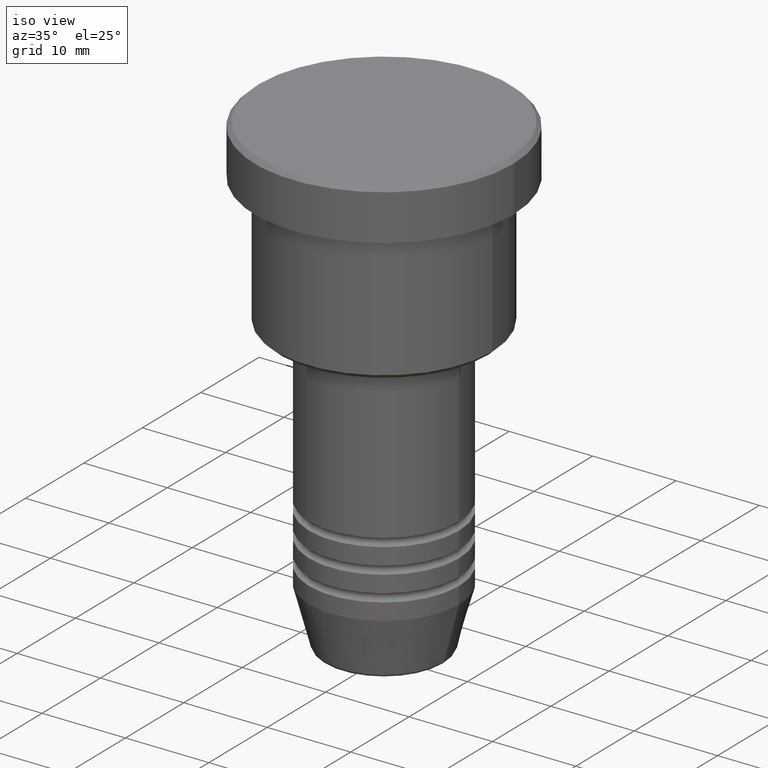
[diagram: clean part render]
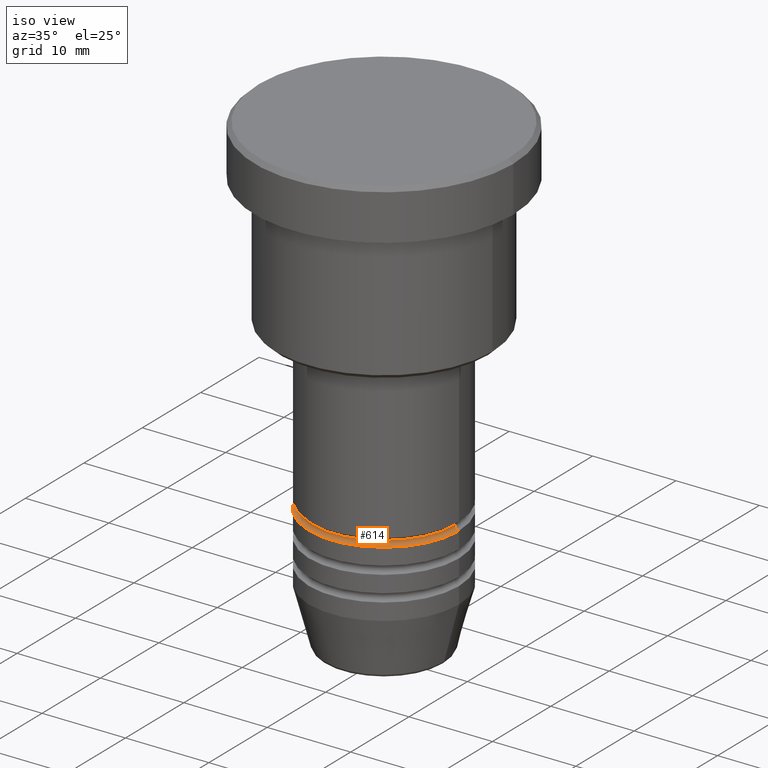
[diagram: same view with one face highlighted and labeled with its STEP entity id]
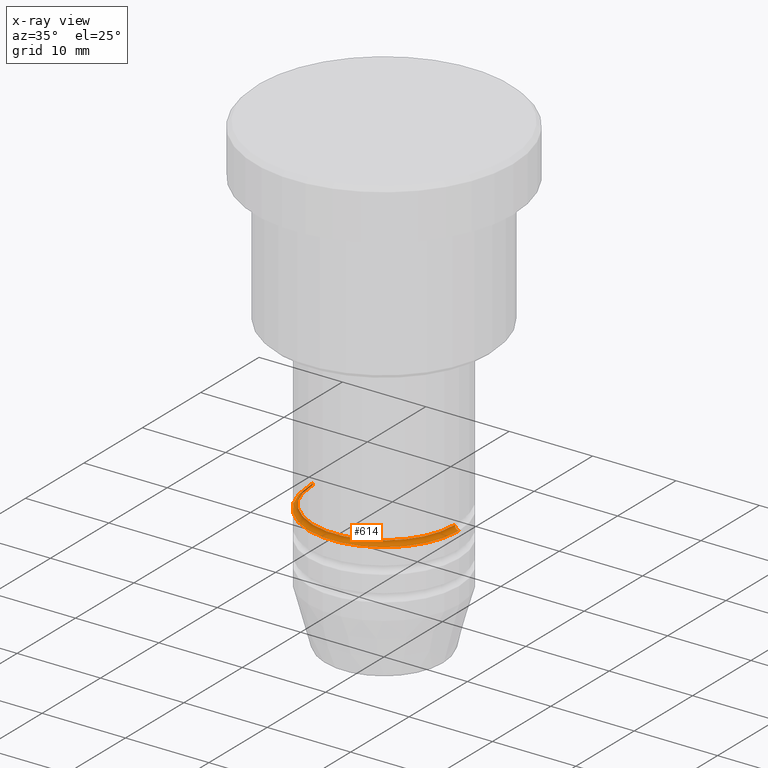
[diagram: x-ray of the same camera — body ghosted, the highlighted face saturated]
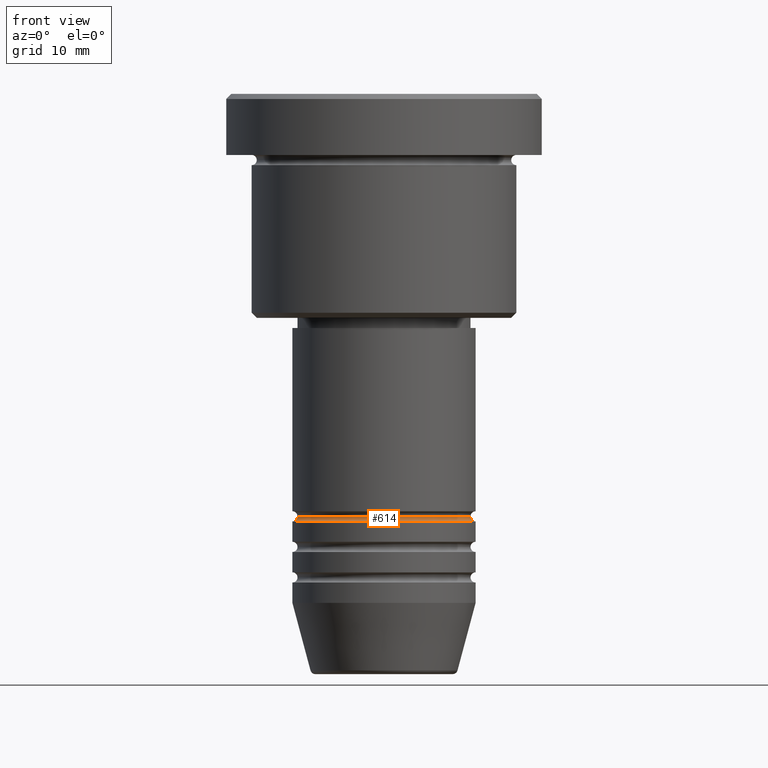
[diagram: same view with one face highlighted and labeled with its STEP entity id]
A machine part, iso view. The second image highlights one B-rep face of the part: STEP entity #614.
The next image is the same camera in x-ray: the body ghosted, the highlighted face saturated — about 2% of this face is hidden behind the body in this view.
A second angle (front view) of the same face is appended — the face is thin or edge-on in the first view.
In plain terms, the highlighted toroidal blend (fillet) surface has major radius 9 mm and minor (blend) radius 0.5 mm.
Its self-contained STEP definition (entity closure, byte-faithful):
#47 = VERTEX_POINT ( 'NONE', #762 ) ;
#135 = DIRECTION ( 'NONE',  ( -0.000000000000000000, -0.000000000000000000, 1.000000000000000000 ) ) ;
#140 = FACE_OUTER_BOUND ( 'NONE', #1010, .T. ) ;
#144 = DIRECTION ( 'NONE',  ( 0.000000000000000000, 0.000000000000000000, -1.000000000000000000 ) ) ;
#148 = DIRECTION ( 'NONE',  ( 0.000000000000000000, -1.000000000000000000, 0.000000000000000000 ) ) ;
#185 = EDGE_CURVE ( 'NONE', #47, #200, #538, .T. ) ;
#200 = VERTEX_POINT ( 'NONE', #766 ) ;
#260 = DIRECTION ( 'NONE',  ( -1.000000000000000000, 1.224646799147353454E-16, 0.000000000000000000 ) ) ;
#262 = ORIENTED_EDGE ( 'NONE', *, *, #646, .T. ) ;
#346 = CARTESIAN_POINT ( 'NONE',  ( -9.000000000000001776, 1.102182119232617911E-15, -41.49999999999997868 ) ) ;
#372 = VERTEX_POINT ( 'NONE', #983 ) ;
#406 = DIRECTION ( 'NONE',  ( 1.000000000000000000, 0.000000000000000000, 0.000000000000000000 ) ) ;
#496 = CIRCLE ( 'NONE', #1054, 8.500000000000000000 ) ;
#519 = CIRCLE ( 'NONE', #789, 9.000000000000000000 ) ;
#534 = AXIS2_PLACEMENT_3D ( 'NONE', #346, #1080, #260 ) ;
#538 = CIRCLE ( 'NONE', #868, 0.5000000000000004441 ) ;
#592 = CARTESIAN_POINT ( 'NONE',  ( 0.000000000000000000, 0.000000000000000000, -41.49999999999997868 ) ) ;
#614 = ADVANCED_FACE ( 'NONE', ( #140 ), #673, .F. ) ;
#646 = EDGE_CURVE ( 'NONE', #822, #200, #519, .T. ) ;
#673 = TOROIDAL_SURFACE ( 'NONE', #979, 9.000000000000001776, 0.5000000000000000000 ) ;
#678 = DIRECTION ( 'NONE',  ( 1.000000000000000000, 0.000000000000000000, 0.000000000000000000 ) ) ;
#680 = CARTESIAN_POINT ( 'NONE',  ( 9.000000000000001776, 0.000000000000000000, -41.49999999999997868 ) ) ;
#698 = CARTESIAN_POINT ( 'NONE',  ( -9.000000000000000000, 1.102182119232617714E-15, -41.99999999999997868 ) ) ;
#755 = EDGE_CURVE ( 'NONE', #372, #822, #1153, .T. ) ;
#762 = CARTESIAN_POINT ( 'NONE',  ( 8.500000000000000000, 0.000000000000000000, -41.49999999999997868 ) ) ;
#766 = CARTESIAN_POINT ( 'NONE',  ( 9.000000000000000000, 0.000000000000000000, -41.99999999999997868 ) ) ;
#789 = AXIS2_PLACEMENT_3D ( 'NONE', #861, #135, #872 ) ;
#822 = VERTEX_POINT ( 'NONE', #698 ) ;
#861 = CARTESIAN_POINT ( 'NONE',  ( 0.000000000000000000, 0.000000000000000000, -41.99999999999997868 ) ) ;
#863 = CARTESIAN_POINT ( 'NONE',  ( 0.000000000000000000, 0.000000000000000000, -41.49999999999997868 ) ) ;
#868 = AXIS2_PLACEMENT_3D ( 'NONE', #680, #148, #144 ) ;
#872 = DIRECTION ( 'NONE',  ( 1.000000000000000000, 0.000000000000000000, 0.000000000000000000 ) ) ;
#948 = DIRECTION ( 'NONE',  ( -0.000000000000000000, -0.000000000000000000, 1.000000000000000000 ) ) ;
#979 = AXIS2_PLACEMENT_3D ( 'NONE', #592, #948, #406 ) ;
#983 = CARTESIAN_POINT ( 'NONE',  ( -8.500000000000000000, 1.071565949253933927E-15, -41.49999999999997868 ) ) ;
#1005 = ORIENTED_EDGE ( 'NONE', *, *, #755, .T. ) ;
#1010 = EDGE_LOOP ( 'NONE', ( #1033, #1005, #262, #1098 ) ) ;
#1033 = ORIENTED_EDGE ( 'NONE', *, *, #1164, .F. ) ;
#1054 = AXIS2_PLACEMENT_3D ( 'NONE', #863, #1136, #678 ) ;
#1080 = DIRECTION ( 'NONE',  ( 1.224646799147353207E-16, 1.000000000000000000, 0.000000000000000000 ) ) ;
#1098 = ORIENTED_EDGE ( 'NONE', *, *, #185, .F. ) ;
#1136 = DIRECTION ( 'NONE',  ( -0.000000000000000000, -0.000000000000000000, 1.000000000000000000 ) ) ;
#1153 = CIRCLE ( 'NONE', #534, 0.5000000000000004441 ) ;
#1164 = EDGE_CURVE ( 'NONE', #372, #47, #496, .T. ) ;